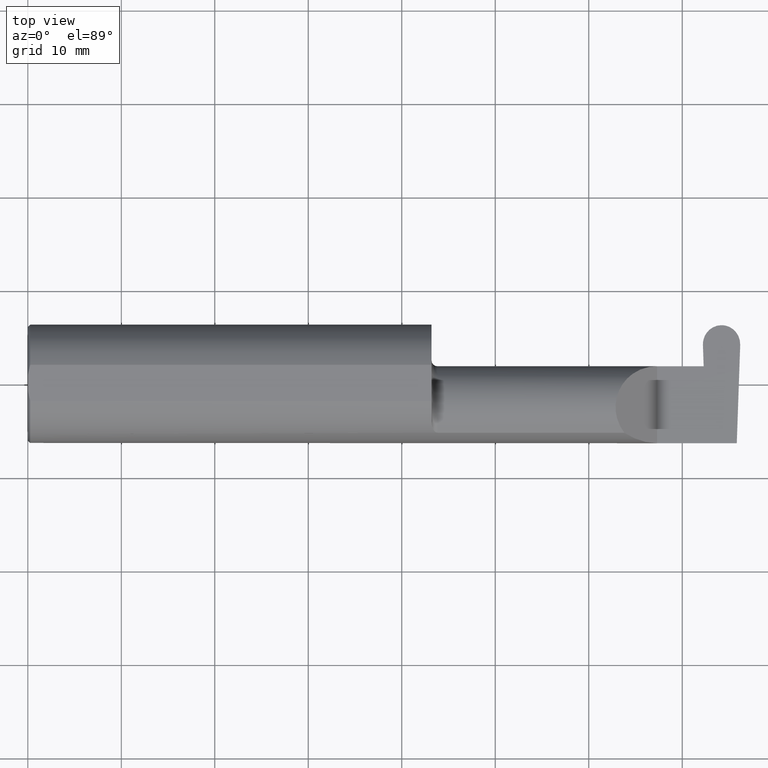
[diagram: clean part render]
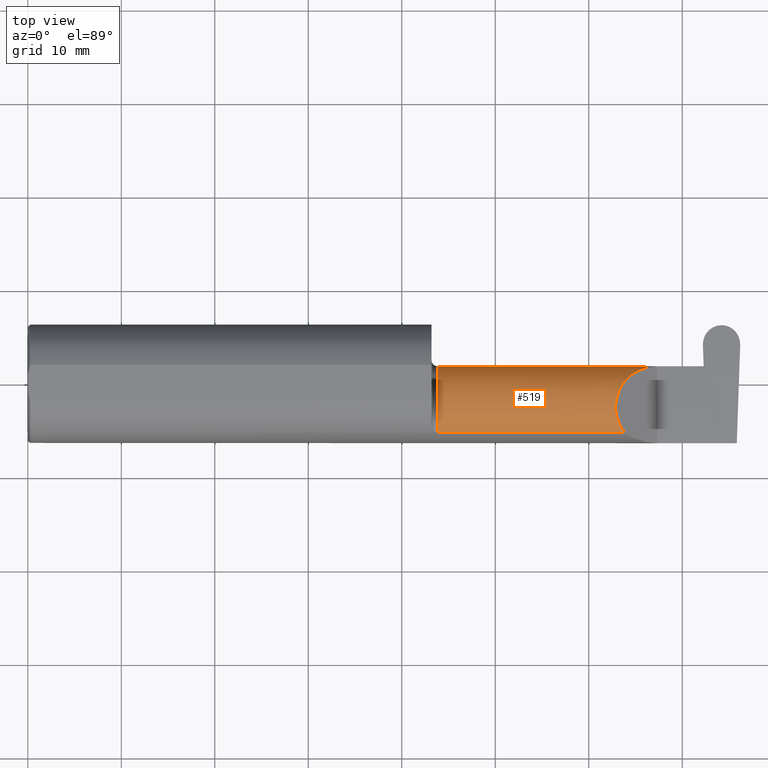
[diagram: same view with one face highlighted and labeled with its STEP entity id]
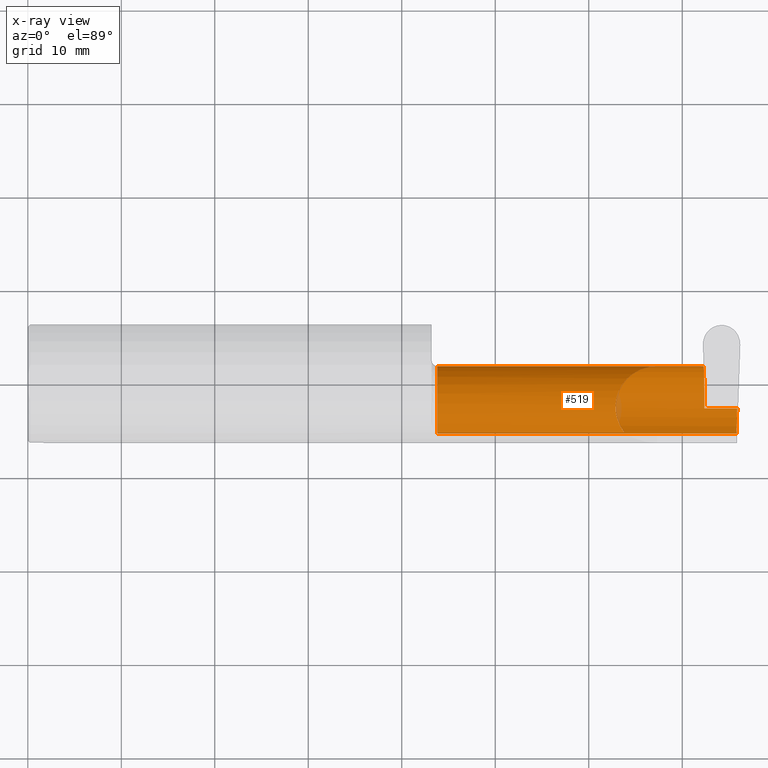
[diagram: x-ray of the same camera — body ghosted, the highlighted face saturated]
A machine part, top view. The second image highlights one B-rep face of the part: STEP entity #519.
The next image is the same camera in x-ray: the body ghosted, the highlighted face saturated — about 1% of this face is hidden behind the body in this view.
In plain terms, the highlighted cylindrical surface (partial cylindrical patch) has radius 4.445 mm, axis along (-1, -0, -0).
Its self-contained STEP definition (entity closure, byte-faithful):
#1 = ORIENTED_EDGE ( 'NONE', *, *, #38, .F. ) ;
#7 = CIRCLE ( 'NONE', #84, 0.1750000000000000167 ) ;
#12 = ORIENTED_EDGE ( 'NONE', *, *, #27, .T. ) ;
#13 = CARTESIAN_POINT ( 'NONE',  ( 2.650000000000000355, 0.07414999999999999369, 1.592040838891556877E-16 ) ) ;
#19 = CARTESIAN_POINT ( 'NONE',  ( 2.987584882537838826, -0.1008500000000000091, -0.1750000000000000722 ) ) ;
#20 = EDGE_CURVE ( 'NONE', #319, #421, #61, .T. ) ;
#27 = EDGE_CURVE ( 'NONE', #94, #481, #57, .T. ) ;
#29 = CARTESIAN_POINT ( 'NONE',  ( 2.834871741199312734, 0.07407892981889410700, -0.004071607948635004408 ) ) ;
#38 = EDGE_CURVE ( 'NONE', #262, #447, #285, .T. ) ;
#47 = CARTESIAN_POINT ( 'NONE',  ( 1.700000000000000178, 0.07404339472834137181, -0.006107411922947746964 ) ) ;
#48 = EDGE_CURVE ( 'NONE', #436, #637, #271, .T. ) ;
#52 = CARTESIAN_POINT ( 'NONE',  ( 2.283868309999999902, -0.2080850024789289432, -0.1382955322609668858 ) ) ;
#56 = CARTESIAN_POINT ( 'NONE',  ( 1.725000000000000089, -0.1008500000000000646, 0.000000000000000000 ) ) ;
#57 = LINE ( 'NONE', #224, #81 ) ;
#61 = LINE ( 'NONE', #552, #157 ) ;
#65 = VERTEX_POINT ( 'NONE', #434 ) ;
#79 = CARTESIAN_POINT ( 'NONE',  ( 2.511704467739032332, -0.2080850024789289432, 0.1382955322609668858 ) ) ;
#81 = VECTOR ( 'NONE', #599, 39.37007874015748143 ) ;
#84 = AXIS2_PLACEMENT_3D ( 'NONE', #56, #107, #674 ) ;
#92 = CARTESIAN_POINT ( 'NONE',  ( 2.984481223124517690, -0.2080850024789288877, -0.1382955322609668858 ) ) ;
#94 = VERTEX_POINT ( 'NONE', #499 ) ;
#107 = DIRECTION ( 'NONE',  ( -1.000000000000000000, -4.482410818444318395E-17, -0.000000000000000000 ) ) ;
#122 = LINE ( 'NONE', #52, #342 ) ;
#123 =( BOUNDED_CURVE ( )  B_SPLINE_CURVE ( 3, ( #581, #422, #651, #145 ),
 .UNSPECIFIED., .F., .F. ) 
 B_SPLINE_CURVE_WITH_KNOTS ( ( 4, 4 ),
 ( 3.159045946109733993, 4.694935687864651541 ),
 .UNSPECIFIED. ) 
 CURVE ( )  GEOMETRIC_REPRESENTATION_ITEM ( )  RATIONAL_B_SPLINE_CURVE ( ( 1.000000000000000000, 0.8128932002257888145, 0.8128932002257888145, 1.000000000000000000 ) ) 
 REPRESENTATION_ITEM ( '' )  );
#129 = CARTESIAN_POINT ( 'NONE',  ( 1.700000000000000178, -0.1008500000000000646, 0.000000000000000000 ) ) ;
#134 = B_SPLINE_CURVE_WITH_KNOTS ( 'NONE', 3,
 ( #311, #29, #692, #645 ),
 .UNSPECIFIED., .F., .F.,
 ( 4, 4 ),
 ( 0.000000000000000000, 1.000000000000000000 ),
 .UNSPECIFIED. ) ;
#145 = CARTESIAN_POINT ( 'NONE',  ( 2.846094497492901887, 0.07404339472834124691, -0.006107411922953763853 ) ) ;
#157 = VECTOR ( 'NONE', #281, 39.37007874015748143 ) ;
#178 = ORIENTED_EDGE ( 'NONE', *, *, #580, .F. ) ;
#179 = CARTESIAN_POINT ( 'NONE',  ( 2.482823929317965028, 0.07414999999999999369, 0.1671760706820338838 ) ) ;
#184 = CARTESIAN_POINT ( 'NONE',  ( 2.409263745716142768, -0.07597241004310682777, 0.2407362542838554220 ) ) ;
#200 = ORIENTED_EDGE ( 'NONE', *, *, #214, .F. ) ;
#202 = ORIENTED_EDGE ( 'NONE', *, *, #529, .T. ) ;
#206 = VERTEX_POINT ( 'NONE', #478 ) ;
#212 = AXIS2_PLACEMENT_3D ( 'NONE', #129, #402, #677 ) ;
#214 = EDGE_CURVE ( 'NONE', #447, #421, #134, .T. ) ;
#224 = CARTESIAN_POINT ( 'NONE',  ( 2.283868309999999902, -0.2080850024789289432, 0.1382955322609668858 ) ) ;
#231 = ORIENTED_EDGE ( 'NONE', *, *, #48, .F. ) ;
#235 = CYLINDRICAL_SURFACE ( 'NONE', #212, 0.1750000000000000444 ) ;
#262 = VERTEX_POINT ( 'NONE', #341 ) ;
#271 = LINE ( 'NONE', #385, #568 ) ;
#281 = DIRECTION ( 'NONE',  ( 1.000000000000000000, 4.482410818444318395E-17, 0.000000000000000000 ) ) ;
#285 = LINE ( 'NONE', #47, #520 ) ;
#293 =( BOUNDED_CURVE ( )  B_SPLINE_CURVE ( 3, ( #92, #414, #376, #533 ),
 .UNSPECIFIED., .F., .F. ) 
 B_SPLINE_CURVE_WITH_KNOTS ( ( 4, 4 ),
 ( 0.4474640105399725343, 1.107026853503876973 ),
 .UNSPECIFIED. ) 
 CURVE ( )  GEOMETRIC_REPRESENTATION_ITEM ( )  RATIONAL_B_SPLINE_CURVE ( ( 1.000000000000000000, 0.9640754331822831702, 0.9640754331822831702, 1.000000000000000000 ) ) 
 REPRESENTATION_ITEM ( '' )  );
#303 = CARTESIAN_POINT ( 'NONE',  ( 2.650000000000000355, 0.07414999999999999369, 1.592040838891556877E-16 ) ) ;
#311 = CARTESIAN_POINT ( 'NONE',  ( 2.834836206108759527, 0.07404339472834127467, -0.006107411922952502709 ) ) ;
#319 = VERTEX_POINT ( 'NONE', #13 ) ;
#341 = CARTESIAN_POINT ( 'NONE',  ( 2.846094497492901887, 0.07404339472834124691, -0.006107411922953763853 ) ) ;
#342 = VECTOR ( 'NONE', #672, 39.37007874015748143 ) ;
#360 = CARTESIAN_POINT ( 'NONE',  ( 2.511704467739032332, -0.2080850024789289432, 0.1382955322609668858 ) ) ;
#364 = EDGE_CURVE ( 'NONE', #94, #65, #7, .T. ) ;
#376 = CARTESIAN_POINT ( 'NONE',  ( 2.986216381845219203, -0.1400387324517230747, -0.1750000000000000999 ) ) ;
#384 = EDGE_CURVE ( 'NONE', #206, #65, #122, .T. ) ;
#385 = CARTESIAN_POINT ( 'NONE',  ( 3.402190948718818664, -0.1008500000000000091, -0.1750000000000000722 ) ) ;
#402 = DIRECTION ( 'NONE',  ( -1.000000000000000000, -4.482410818444318395E-17, -0.000000000000000000 ) ) ;
#414 = CARTESIAN_POINT ( 'NONE',  ( 2.985143277913549831, -0.1771157075472508113, -0.1623092683844332140 ) ) ;
#421 = VERTEX_POINT ( 'NONE', #456 ) ;
#422 = CARTESIAN_POINT ( 'NONE',  ( 2.849170060624870882, -0.001152430219572253686, -0.1750000000000000444 ) ) ;
#434 = CARTESIAN_POINT ( 'NONE',  ( 1.725000000000000089, -0.2080850024789290265, -0.1382955322609667748 ) ) ;
#436 = VERTEX_POINT ( 'NONE', #19 ) ;
#438 = DIRECTION ( 'NONE',  ( -1.000000000000000000, -4.482410818444318395E-17, -0.000000000000000000 ) ) ;
#443 = ORIENTED_EDGE ( 'NONE', *, *, #20, .T. ) ;
#447 = VERTEX_POINT ( 'NONE', #622 ) ;
#456 = CARTESIAN_POINT ( 'NONE',  ( 2.834942811380418259, 0.07414999999999977165, 0.000000000000000000 ) ) ;
#458 =( BOUNDED_CURVE ( )  B_SPLINE_CURVE ( 3, ( #79, #184, #179, #303 ),
 .UNSPECIFIED., .F., .T. ) 
 B_SPLINE_CURVE_WITH_KNOTS ( ( 4, 4 ),
 ( 5.623622464215681127, 7.853981633974482790 ),
 .UNSPECIFIED. ) 
 CURVE ( )  GEOMETRIC_REPRESENTATION_ITEM ( )  RATIONAL_B_SPLINE_CURVE ( ( 1.000000000000000000, 0.6266774836123996106, 0.6266774836123996106, 1.000000000000000000 ) ) 
 REPRESENTATION_ITEM ( '' )  );
#478 = CARTESIAN_POINT ( 'NONE',  ( 2.984481223124517690, -0.2080850024789288877, -0.1382955322609668858 ) ) ;
#481 = VERTEX_POINT ( 'NONE', #360 ) ;
#499 = CARTESIAN_POINT ( 'NONE',  ( 1.725000000000000089, -0.2080850024789289709, 0.1382955322609668580 ) ) ;
#519 = ADVANCED_FACE ( 'NONE', ( #521 ), #235, .T. ) ;
#520 = VECTOR ( 'NONE', #438, 39.37007874015748143 ) ;
#521 = FACE_OUTER_BOUND ( 'NONE', #536, .T. ) ;
#529 = EDGE_CURVE ( 'NONE', #481, #319, #458, .T. ) ;
#533 = CARTESIAN_POINT ( 'NONE',  ( 2.987584882537838826, -0.1008500000000000091, -0.1750000000000000722 ) ) ;
#534 = ORIENTED_EDGE ( 'NONE', *, *, #384, .T. ) ;
#536 = EDGE_LOOP ( 'NONE', ( #534, #611, #12, #202, #443, #200, #1, #178, #231, #541 ) ) ;
#541 = ORIENTED_EDGE ( 'NONE', *, *, #642, .F. ) ;
#552 = CARTESIAN_POINT ( 'NONE',  ( 1.700000000000000178, 0.07414999999999995206, 1.592040838891556877E-16 ) ) ;
#568 = VECTOR ( 'NONE', #664, 39.37007874015748143 ) ;
#580 = EDGE_CURVE ( 'NONE', #637, #262, #123, .T. ) ;
#581 = CARTESIAN_POINT ( 'NONE',  ( 2.849201506090199398, -0.1008500000000000368, -0.1750000000000000444 ) ) ;
#599 = DIRECTION ( 'NONE',  ( 1.000000000000000000, 4.482410818444318395E-17, 0.000000000000000000 ) ) ;
#611 = ORIENTED_EDGE ( 'NONE', *, *, #364, .F. ) ;
#622 = CARTESIAN_POINT ( 'NONE',  ( 2.834836206108759527, 0.07404339472834127467, -0.006107411922952502709 ) ) ;
#637 = VERTEX_POINT ( 'NONE', #647 ) ;
#642 = EDGE_CURVE ( 'NONE', #206, #436, #293, .T. ) ;
#645 = CARTESIAN_POINT ( 'NONE',  ( 2.834942811380418259, 0.07414999999999977165, 0.000000000000000000 ) ) ;
#647 = CARTESIAN_POINT ( 'NONE',  ( 2.849201506090199398, -0.1008500000000000368, -0.1750000000000000444 ) ) ;
#651 = CARTESIAN_POINT ( 'NONE',  ( 2.847896006995015661, 0.07056399972053258030, -0.1057442486376092561 ) ) ;
#664 = DIRECTION ( 'NONE',  ( -1.000000000000000000, -0.000000000000000000, -0.000000000000000000 ) ) ;
#672 = DIRECTION ( 'NONE',  ( -1.000000000000000000, -4.482410818444318395E-17, -0.000000000000000000 ) ) ;
#674 = DIRECTION ( 'NONE',  ( 0.000000000000000000, -1.000000000000000000, 0.000000000000000000 ) ) ;
#677 = DIRECTION ( 'NONE',  ( 0.000000000000000000, -1.000000000000000000, 0.000000000000000000 ) ) ;
#692 = CARTESIAN_POINT ( 'NONE',  ( 2.834907276289865052, 0.07411446490944693932, -0.002035803974317502204 ) ) ;